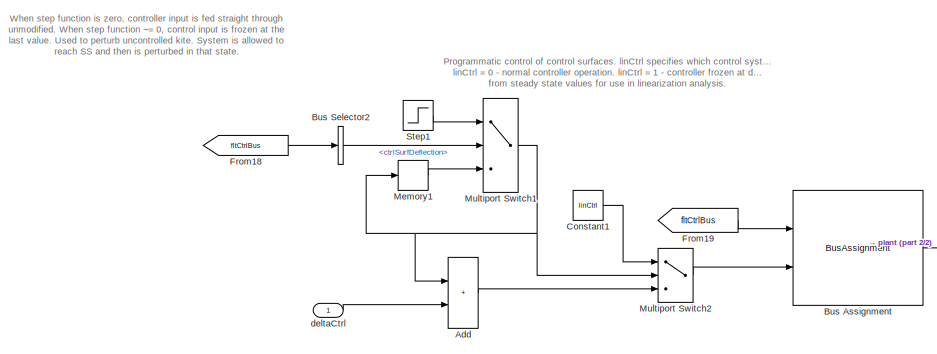
[diagram: root canvas - part 1/2, top left region]
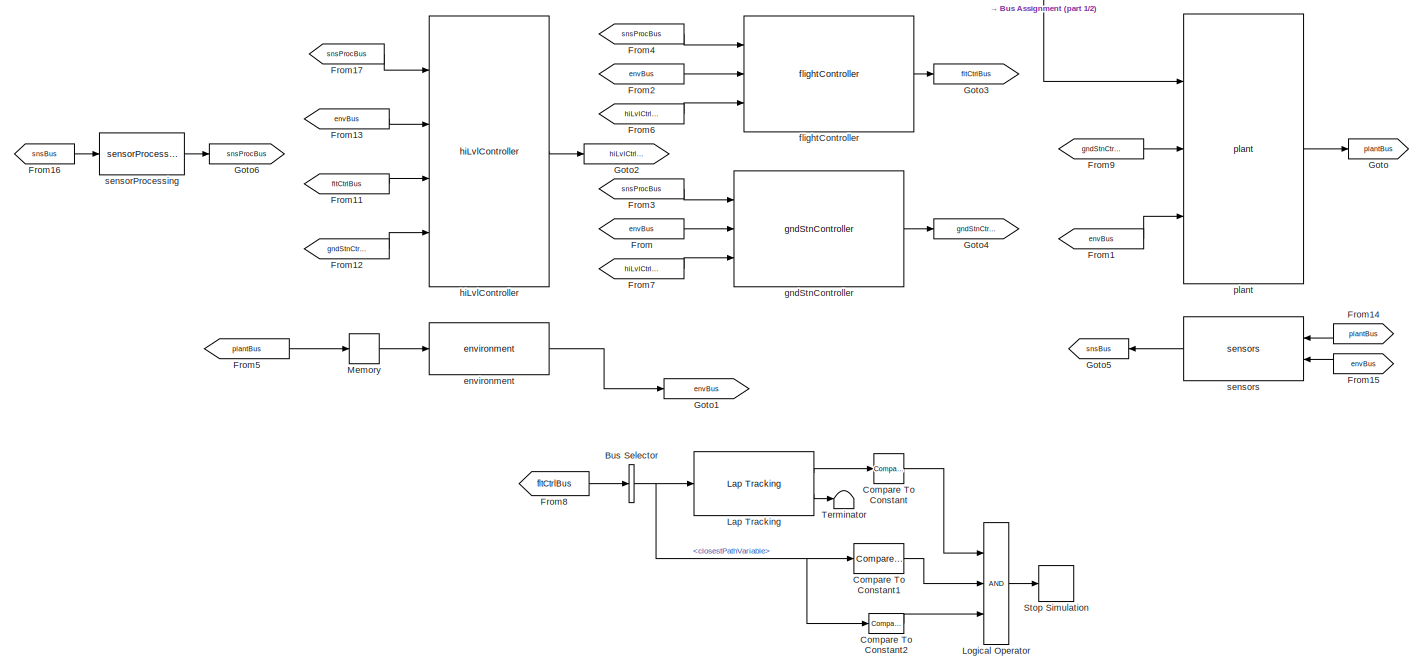
[diagram: root canvas - part 2/2, full width, bottom band]
MODEL slx_2f58c0cbb14d
KIND model
CONFIG AbsTol = auto
CONFIG EnableMultiTasking = off
CONFIG FixedStep = auto
CONFIG MaxStep = auto
CONFIG MinStep = auto
CONFIG RelTol = 1e-3
CONFIG SampleTimeConstraint = Unconstrained
CONFIG SolverName = ode15s
CONFIG StartTime = 0.0
CONFIG StopTime = duration_s
BLOCK [Sum] Add
  IconShape = rectangular
  Ports = [2, 1]
BLOCK [BusAssignment] Bus Assignment
  AssignedSignals = ctrlSurfDeflection
  Ports = [2, 1]
BLOCK [BusSelector] Bus Selector
  OutputSignals = closestPathVariable
  Ports = [1, 1]
BLOCK [BusSelector] Bus Selector2
  OutputSignals = ctrlSurfDeflection
  Ports = [1, 1]
BLOCK [Reference] Compare To Constant  REF=simulink/Logic and Bit
Operations/Compare
To Constant
  Ports = [1, 1]
  SourceBlock = simulink/Logic and Bit\nOperations/Compare\nTo Constant
  SourceProductBaseCode = SL
  SourceType = Compare To Constant
BLOCK [Reference] Compare To Constant1  REF=simulink/Logic and Bit
Operations/Compare
To Constant
  Ports = [1, 1]
  SourceBlock = simulink/Logic and Bit\nOperations/Compare\nTo Constant
  SourceProductBaseCode = SL
  SourceType = Compare To Constant
BLOCK [Reference] Compare To Constant2  REF=simulink/Logic and Bit
Operations/Compare
To Constant
  Ports = [1, 1]
  SourceBlock = simulink/Logic and Bit\nOperations/Compare\nTo Constant
  SourceProductBaseCode = SL
  SourceType = Compare To Constant
BLOCK [Constant] Constant1
  Value = linCtrl
BLOCK [From] From
  GotoTag = envBus
BLOCK [From] From1
  GotoTag = envBus
BLOCK [From] From11
  GotoTag = fltCtrlBus
BLOCK [From] From12
  GotoTag = gndStnCtrlBus
BLOCK [From] From13
  GotoTag = envBus
BLOCK [From] From14
  GotoTag = plantBus
BLOCK [From] From15
  GotoTag = envBus
BLOCK [From] From16
  GotoTag = snsBus
BLOCK [From] From17
  GotoTag = snsProcBus
BLOCK [From] From18
  GotoTag = fltCtrlBus
BLOCK [From] From19
  GotoTag = fltCtrlBus
BLOCK [From] From2
  GotoTag = envBus
BLOCK [From] From3
  GotoTag = snsProcBus
BLOCK [From] From4
  GotoTag = snsProcBus
BLOCK [From] From5
  GotoTag = plantBus
BLOCK [From] From6
  GotoTag = hiLvlCtrlBus
BLOCK [From] From7
  GotoTag = hiLvlCtrlBus
BLOCK [From] From8
  GotoTag = fltCtrlBus
BLOCK [From] From9
  GotoTag = gndStnCtrlBus
BLOCK [Goto] Goto
  GotoTag = plantBus
BLOCK [Goto] Goto1
  GotoTag = envBus
BLOCK [Goto] Goto2
  GotoTag = hiLvlCtrlBus
BLOCK [Goto] Goto3
  GotoTag = fltCtrlBus
BLOCK [Goto] Goto4
  GotoTag = gndStnCtrlBus
BLOCK [Goto] Goto5
  GotoTag = snsBus
BLOCK [Goto] Goto6
  GotoTag = snsProcBus
BLOCK [Reference] Lap Tracking  REF=pathFollowingControllerManta_cl/pathFollowingControllerManta/Lap Tracking
  Ports = [1, 2]
  SourceBlock = pathFollowingControllerManta_cl/pathFollowingControllerManta/Lap Tracking
  SourceType = SubSystem
BLOCK [Logic] Logical Operator
  AllPortsSameDT = off
  Inputs = 3
  OutDataTypeStr = boolean
  Ports = [3, 1]
BLOCK [Memory] Memory
BLOCK [Memory] Memory1
  LinearizeMemory = on
BLOCK [MultiPortSwitch] Multiport Switch1
  DataPortOrder = Zero-based contiguous
  InputSameDT = off
  Inputs = 2
  Ports = [3, 1]
  SaturateOnIntegerOverflow = off
  zeroidx = on
BLOCK [MultiPortSwitch] Multiport Switch2
  DataPortOrder = Zero-based contiguous
  InputSameDT = off
  Inputs = 2
  Ports = [3, 1]
  SaturateOnIntegerOverflow = off
  zeroidx = on
BLOCK [Step] Step1
  After = ctrlFreeze
  SampleTime = 0
  Time = ctrlFreezeTime
BLOCK [Stop] Stop Simulation
BLOCK [Terminator] Terminator
BLOCK [Inport] deltaCtrl
  PortDimensions = 4
BLOCK [Reference] environment  REF=environment_cl/environment  (lib defined in slx_47dae840ee41)
  Ports = [1, 1]
  SourceBlock = environment_cl/environment
  SourceType = SubSystem
BLOCK [Reference] flightController  REF=flightController_cl/flightController
  Ports = [3, 1]
  SourceBlock = flightController_cl/flightController
  SourceType = SubSystem
BLOCK [Reference] gndStnController  REF=gndStnController_cl/gndStnController
  Ports = [3, 1]
  SourceBlock = gndStnController_cl/gndStnController
  SourceType = SubSystem
BLOCK [Reference] hiLvlController  REF=hiLvlController_cl/hiLvlController
  Ports = [4, 1]
  SourceBlock = hiLvlController_cl/hiLvlController
  SourceType = SubSystem
BLOCK [Reference] plant  REF=plant_cl/plant  (lib defined in slx_16586b0fd0ad)
  Ports = [3, 1]
  SourceBlock = plant_cl/plant
  SourceType = SubSystem
BLOCK [Reference] sensorProcessing  REF=sensorProcessing_cl/sensorProcessing
  Ports = [1, 1]
  SourceBlock = sensorProcessing_cl/sensorProcessing
  SourceType = SubSystem
BLOCK [Reference] sensors  REF=sensors_cl/sensors
  Ports = [2, 1]
  SourceBlock = sensors_cl/sensors
  SourceType = SubSystem
ANNOTATION (root): Programmatic control of control surfaces. linCtrl specifies which control system is used. linCtrl = 0 - normal controller operation. linCtrl = 1 - controller frozen at deflections picked off from steady state values for use in linearization analysis.
ANNOTATION (root): When step function is zero, controller input is fed straight through unmodified. When step function ~= 0, control input is frozen at the last value. Used to perturb uncontrolled kite. System is allowed to reach SS and then is perturbed in that state.
LINE Add:1 -> Multiport Switch2:3
LINE Bus Assignment:1 -> plant:1
LINE Bus Selector2:1 -> Multiport Switch1:2
NET Bus Selector:1 -> Compare To Constant1:1, Compare To Constant2:1, Lap Tracking:1
LINE Compare To Constant1:1 -> Logical Operator:2
LINE Compare To Constant2:1 -> Logical Operator:3
LINE Compare To Constant:1 -> Logical Operator:1
LINE Constant1:1 -> Multiport Switch2:1
LINE From11:1 -> hiLvlController:3
LINE From12:1 -> hiLvlController:4
LINE From13:1 -> hiLvlController:2
LINE From14:1 -> sensors:1
LINE From15:1 -> sensors:2
LINE From16:1 -> sensorProcessing:1
LINE From17:1 -> hiLvlController:1
LINE From18:1 -> Bus Selector2:1
LINE From19:1 -> Bus Assignment:1
LINE From1:1 -> plant:3
LINE From2:1 -> flightController:2
LINE From3:1 -> gndStnController:1
LINE From4:1 -> flightController:1
LINE From5:1 -> Memory:1
LINE From6:1 -> flightController:3
LINE From7:1 -> gndStnController:3
LINE From8:1 -> Bus Selector:1
LINE From9:1 -> plant:2
LINE From:1 -> gndStnController:2
LINE Lap Tracking:1 -> Compare To Constant:1
LINE Lap Tracking:2 -> Terminator:1
LINE Logical Operator:1 -> Stop Simulation:1
LINE Memory1:1 -> Multiport Switch1:3
LINE Memory:1 -> environment:1
NET Multiport Switch1:1 -> Add:1, Memory1:1, Multiport Switch2:2
LINE Multiport Switch2:1 -> Bus Assignment:2
LINE Step1:1 -> Multiport Switch1:1
LINE deltaCtrl:1 -> Add:2
LINE environment:1 -> Goto1:1
LINE flightController:1 -> Goto3:1
LINE gndStnController:1 -> Goto4:1
LINE hiLvlController:1 -> Goto2:1
LINE plant:1 -> Goto:1
LINE sensorProcessing:1 -> Goto6:1
LINE sensors:1 -> Goto5:1
note: NET lines group one-source signal fan-out (src -> all destinations, sorted); 1:1 wires keep LINE
